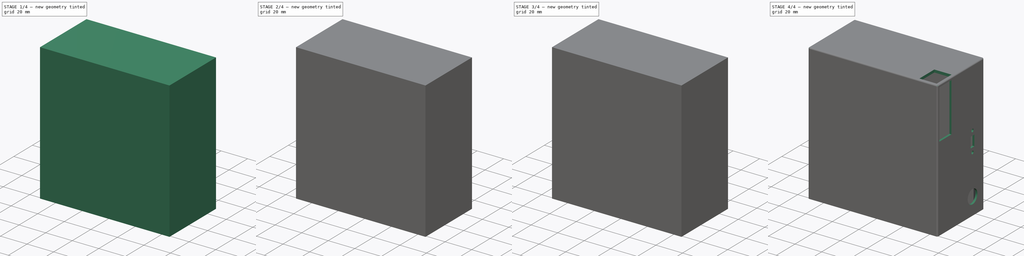
[diagram: build sequence overview — one tinted view per stage of 4, left to right]
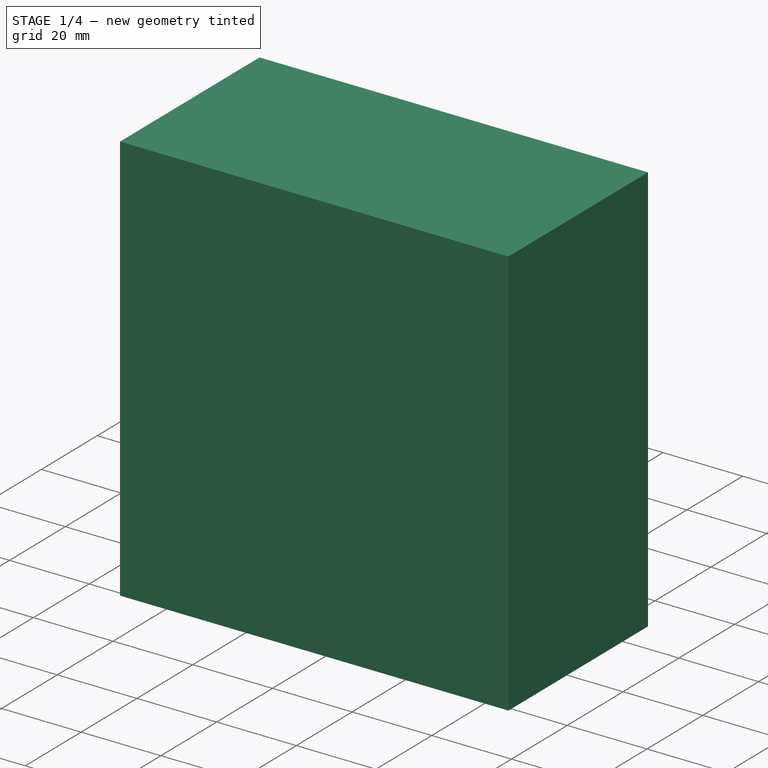
[diagram: stage 1 of 4 — iso view after this stage's code; geometry added in this stage tinted green]
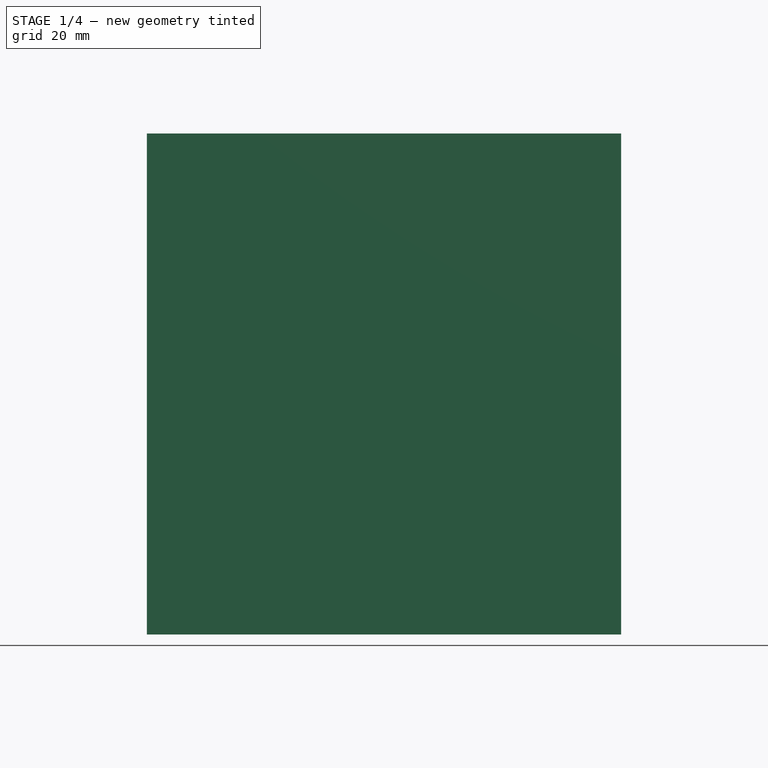
[diagram: stage 1 of 4 — front view after this stage's code; geometry added in this stage tinted green]
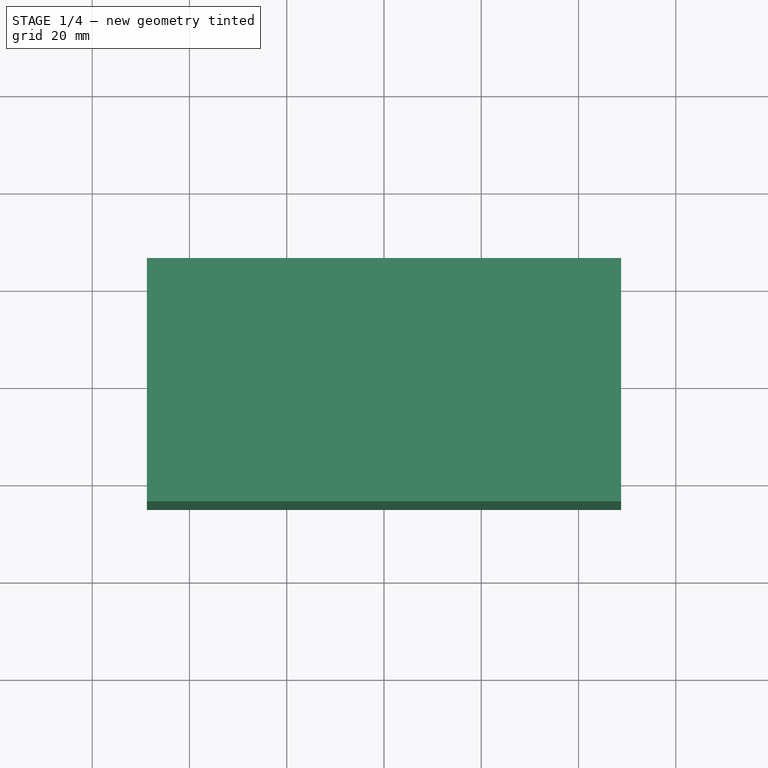
[diagram: stage 1 of 4 — top view after this stage's code; geometry added in this stage tinted green]
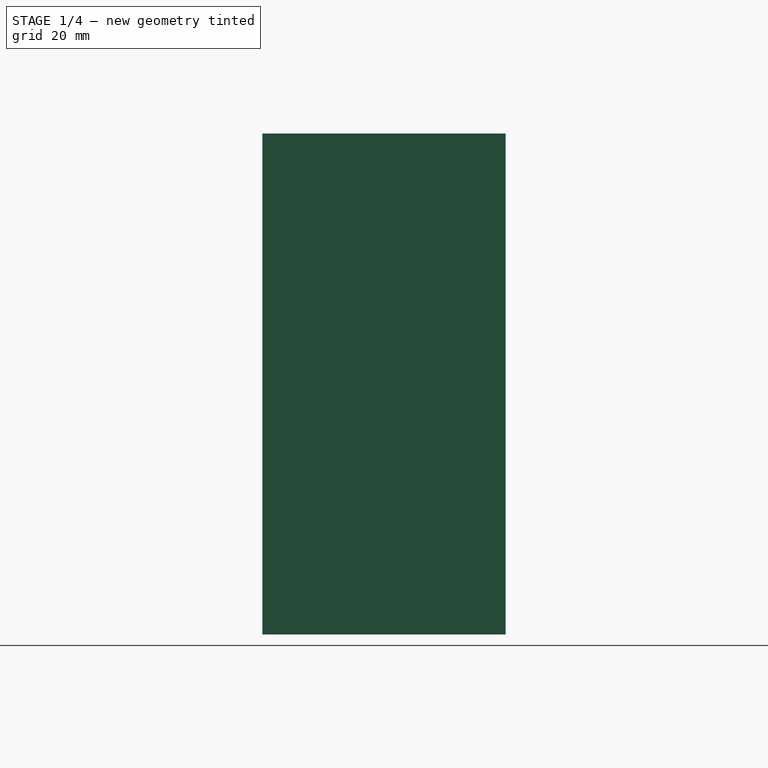
[diagram: stage 1 of 4 — right view after this stage's code; geometry added in this stage tinted green]
FCSTD DOCUMENT  (FreeCAD 0.18R16146 (Git))
Label: remote_box
License: All rights reserved
LicenseURL: http://en.wikipedia.org/wiki/All_rights_reserved
objects: Sketcher::SketchObject×10, PartDesign::Pocket×8, PartDesign::Pad×2, PartDesign::Plane×1, PartDesign::Fillet×1, PartDesign::Body×1
note: 33 computed .brp shape members not serialized (recipe doc carries the construction recipe); baked Part::Feature solids carry a one-line shape summary decoded from their .brp

FEATURE [Sketcher::SketchObject] Sketch
  MapMode = 5
  Support = -> [XY_Plane]
  sketch-geometry (4):
    g0: LineSegment StartX=-48.75 StartY=25 StartZ=0 EndX=48.75 EndY=25 EndZ=0
    g1: LineSegment StartX=48.75 StartY=25 StartZ=0 EndX=48.75 EndY=-25 EndZ=0
    g2: LineSegment StartX=48.75 StartY=-25 StartZ=0 EndX=-48.75 EndY=-25 EndZ=0
    g3: LineSegment StartX=-48.75 StartY=-25 StartZ=0 EndX=-48.75 EndY=25 EndZ=0
  constraints (10):
    c: Coincident(g0,g1)
    c: Coincident(g1,g2)
    c: Coincident(g2,g3)
    c: Coincident(g3,g0)
    c: Horizontal(g2)
    c: Vertical(g1)
    c: Symmetric(g0,g0,g-2)
    c: Symmetric(g2,g0,g-1)
    c: DistanceX(g0,g0) = 97.5
    c: DistanceY(g3,g3) = 50
FEATURE [PartDesign::Pad] Pad
  Length = 103
  Length2 = 100
  Profile = -> Sketch
  Type = 0
FEATURE [Sketcher::SketchObject] Sketch001
  MapMode = 5
  Placement = pos=(0,0,0) rot=(1,0,0;3.14159rad)
  Support = -> [Pad]
  sketch-geometry (25):
    g0: LineSegment StartX=-42.3003 StartY=23 StartZ=0 EndX=-47.25 EndY=18.0503 EndZ=0
    g1: LineSegment StartX=-47.25 StartY=18.0503 StartZ=0 EndX=-47.25 EndY=4.1 EndZ=0
    g2: LineSegment StartX=-47.25 StartY=4.1 StartZ=0 EndX=-42.25 EndY=4.1 EndZ=0
    g3: LineSegment StartX=-42.25 StartY=4.1 StartZ=0 EndX=-42.25 EndY=2.2 EndZ=0
    g4: LineSegment StartX=-42.25 StartY=2.2 StartZ=0 EndX=-47.25 EndY=2.2 EndZ=0
    g5: LineSegment StartX=-47.25 StartY=2.2 StartZ=0 EndX=-47.25 EndY=0.3 EndZ=0
    g6: LineSegment StartX=-47.25 StartY=0.3 StartZ=0 EndX=-42.25 EndY=0.3 EndZ=0
    g7: LineSegment StartX=-42.25 StartY=0.3 StartZ=0 EndX=-42.25 EndY=-1.6 EndZ=0
    g8: LineSegment StartX=-42.25 StartY=-1.6 StartZ=0 EndX=-47.25 EndY=-1.6 EndZ=0
    g9: LineSegment StartX=-47.25 StartY=-1.6 StartZ=0 EndX=-47.25 EndY=-18.0503 EndZ=0
    g10: LineSegment StartX=-47.25 StartY=-18.0503 StartZ=0 EndX=-42.3003 EndY=-23 EndZ=0
    g11: LineSegment StartX=-42.3003 StartY=-23 StartZ=0 EndX=42.3003 EndY=-23 EndZ=0
    g12: LineSegment StartX=42.3003 StartY=-23 StartZ=0 EndX=47.25 EndY=-18.0503 EndZ=0
    g13: LineSegment StartX=47.25 StartY=-18.0503 StartZ=0 EndX=47.25 EndY=-1.6 EndZ=0
    g14: LineSegment StartX=47.25 StartY=-1.6 StartZ=0 EndX=42.25 EndY=-1.6 EndZ=0
    g15: LineSegment StartX=42.25 StartY=-1.6 StartZ=0 EndX=42.25 EndY=0.3 EndZ=0
    g16: LineSegment StartX=42.25 StartY=0.3 StartZ=0 EndX=47.25 EndY=0.3 EndZ=0
    g17: LineSegment StartX=47.25 StartY=0.3 StartZ=0 EndX=47.25 EndY=2.2 EndZ=0
    g18: LineSegment StartX=47.25 StartY=2.2 StartZ=0 EndX=42.25 EndY=2.2 EndZ=0
    g19: LineSegment StartX=42.25 StartY=2.2 StartZ=0 EndX=42.25 EndY=4.1 EndZ=0
    g20: LineSegment StartX=42.25 StartY=4.1 StartZ=0 EndX=47.25 EndY=4.1 EndZ=0
    g21: LineSegment StartX=47.25 StartY=4.1 StartZ=0 EndX=47.25 EndY=4.1 EndZ=0
    g22: LineSegment StartX=47.25 StartY=4.1 StartZ=0 EndX=19.25 EndY=4.1 EndZ=0
    g23: LineSegment StartX=19.25 StartY=4.1 StartZ=0 EndX=19.25 EndY=23 EndZ=0
    g24: LineSegment StartX=19.25 StartY=23 StartZ=0 EndX=-42.3003 EndY=23 EndZ=0
  constraints (71):
    c: Coincident(g0,g1)
    c: Vertical(g1)
    c: Coincident(g1,g2)
    c: Horizontal(g2)
    c: Coincident(g2,g3)
    c: Vertical(g3)
    c: Coincident(g3,g4)
    c: Horizontal(g4)
    c: Coincident(g4,g5)
    c: Vertical(g5)
    c: Coincident(g5,g6)
    c: Horizontal(g6)
    c: Coincident(g6,g7)
    c: Vertical(g7)
    c: Coincident(g7,g8)
    c: Horizontal(g8)
    c: Coincident(g8,g9)
    c: Coincident(g9,g10)
    c: Coincident(g10,g11)
    c: Coincident(g11,g12)
    c: Coincident(g12,g13)
    c: Vertical(g13)
    c: Coincident(g13,g14)
    c: Horizontal(g14)
    c: Coincident(g14,g15)
    c: Vertical(g15)
    c: Coincident(g15,g16)
    c: Horizontal(g16)
    c: Coincident(g16,g17)
    c: Vertical(g17)
    c: Coincident(g17,g18)
    c: Horizontal(g18)
    c: Coincident(g18,g19)
    c: Vertical(g19)
    c: Coincident(g19,g20)
    c: Horizontal(g20)
    c: Coincident(g20,g21)
    c: Vertical(g21)
    c: Coincident(g21,g22)
    c: Horizontal(g22)
    c: Coincident(g22,g23)
    c: Vertical(g23)
    c: Coincident(g23,g24)
    c: Coincident(g24,g0)
    c: Horizontal(g24)
    c: Symmetric(g11,g10,g-2)
    c: Symmetric(g9,g12,g-2)
    c: Symmetric(g9,g0,g-1)
    c: Symmetric(g0,g10,g-1)
    c: DistanceX(g9,g12) = 94.5
    c: Angle(g11,g10) = 2.35619
    c: DistanceY(g10,g0) = 46
    c: Distance(g0) = 7
    c: Equal(g2,g4)
    c: Equal(g4,g6)
    c: Equal(g6,g8)
    c: Equal(g8,g20)
    c: Equal(g20,g18)
    c: Equal(g18,g16)
    c: Equal(g16,g14)
    c: Equal(g3,g5)
    c: Equal(g5,g7)
    c: Equal(g7,g19)
    c: Equal(g19,g17)
    c: Equal(g17,g15)
    c: DistanceY(g7,g7) = 1.9
    c: Equal(g9,g13)
    c: DistanceX(g2,g2) = 5
    c: DistanceY(g11,g16) = 23.3
    c: DistanceY(g23,g23) = 18.9
    c: DistanceX(g22,g22) = 28
FEATURE [PartDesign::Pocket] Pocket
  BaseFeature = -> Pad
  Length = 101
  Length2 = 100
  Profile = -> Sketch001
  Type = 0
FEATURE [Sketcher::SketchObject] Sketch002
  MapMode = 5
  Placement = pos=(0,0,0) rot=(1,0,0;3.14159rad)
  Support = -> [Pocket]
  sketch-geometry (4):
    g0: LineSegment StartX=20.95 StartY=23 StartZ=0 EndX=47.25 EndY=23 EndZ=0
    g1: LineSegment StartX=47.25 StartY=23 StartZ=0 EndX=47.25 EndY=5.7 EndZ=0
    g2: LineSegment StartX=47.25 StartY=5.7 StartZ=0 EndX=20.95 EndY=5.7 EndZ=0
    g3: LineSegment StartX=20.95 StartY=5.7 StartZ=0 EndX=20.95 EndY=23 EndZ=0
  constraints (12):
    c: Coincident(g0,g1)
    c: Coincident(g1,g2)
    c: Coincident(g2,g3)
    c: Coincident(g3,g0)
    c: Horizontal(g0)
    c: Horizontal(g2)
    c: Vertical(g1)
    c: Vertical(g3)
    c: DistanceY(g1,g1) = 17.3
    c: DistanceX(g0,g0) = 26.3
    c: DistanceX(g-1,g0) = 47.25
    c: DistanceY(g-1,g0) = 23
FEATURE [PartDesign::Pocket] Pocket001
  BaseFeature = -> Pocket
  Length = 101
  Length2 = 100
  Profile = -> Sketch002
  Type = 0
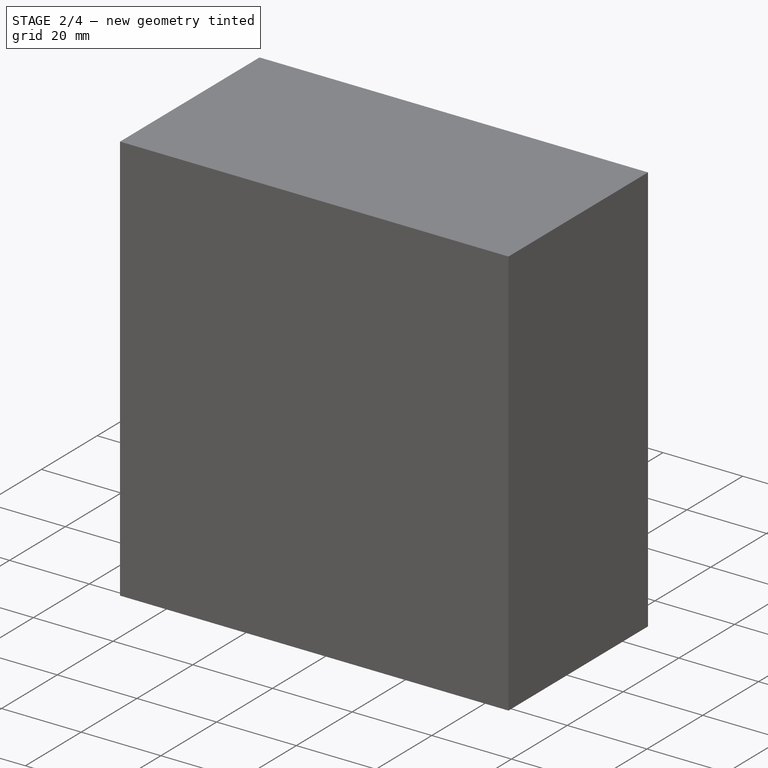
[diagram: stage 2 of 4 — iso view after this stage's code; geometry added in this stage tinted green]
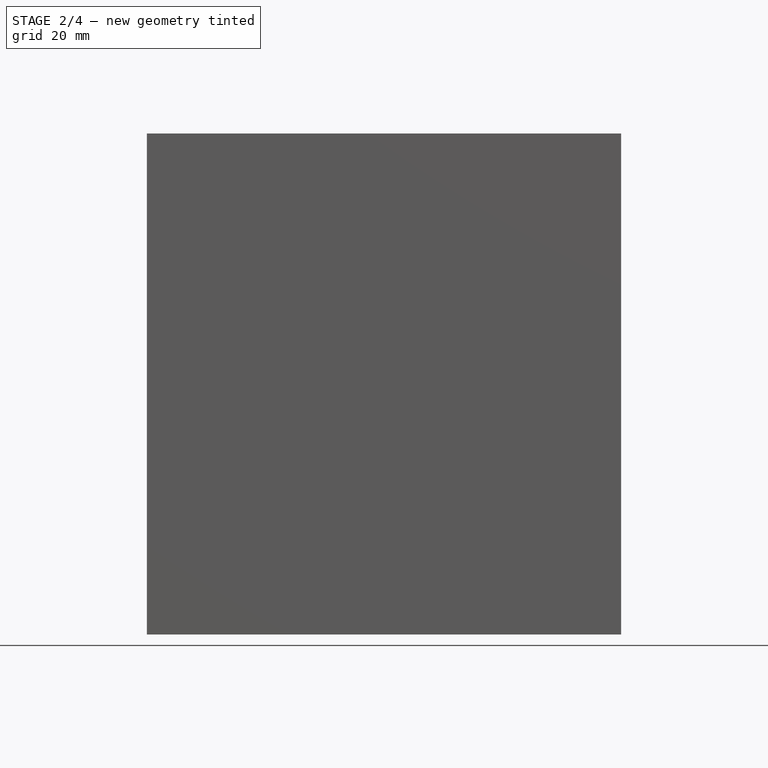
[diagram: stage 2 of 4 — front view after this stage's code; geometry added in this stage tinted green]
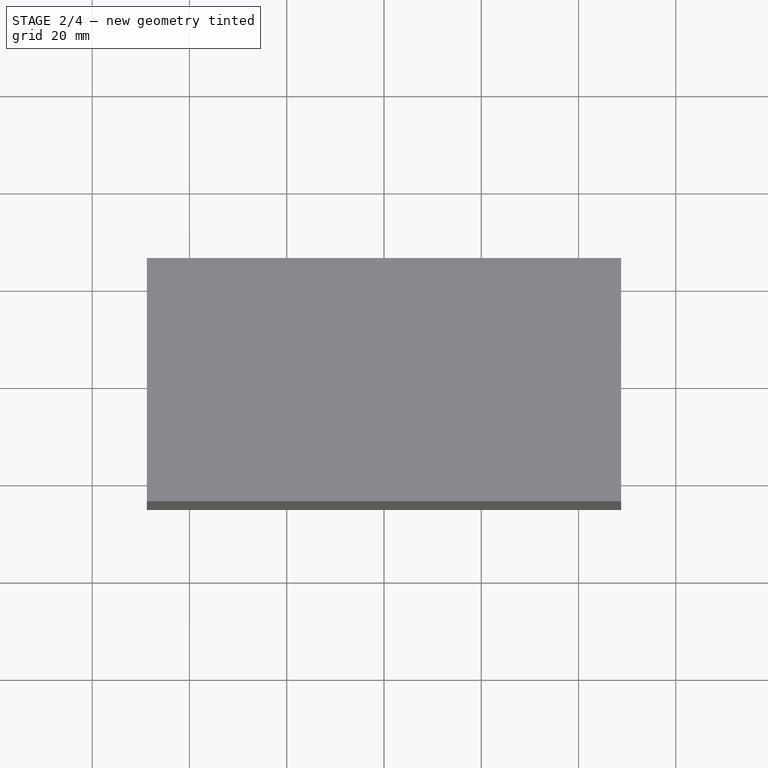
[diagram: stage 2 of 4 — top view after this stage's code; geometry added in this stage tinted green]
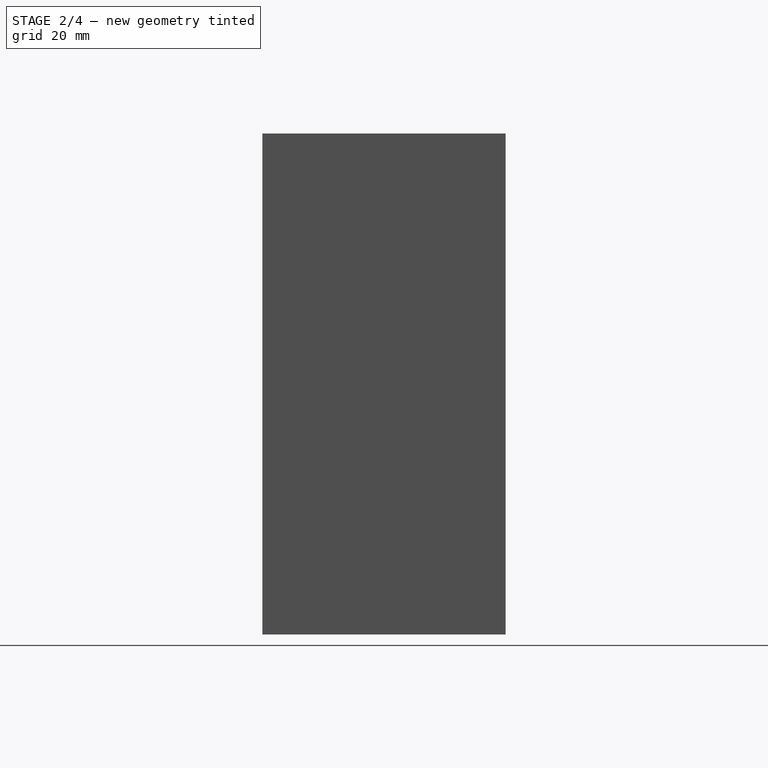
[diagram: stage 2 of 4 — right view after this stage's code; geometry added in this stage tinted green]
FEATURE [Sketcher::SketchObject] Sketch003
  MapMode = 5
  Placement = pos=(0,0,0) rot=(1,0,0;3.14159rad)
  Support = -> [Pocket001]
  sketch-geometry (4):
    g0: LineSegment StartX=19.05 StartY=4.1 StartZ=0 EndX=47.25 EndY=4.1 EndZ=0
    g1: LineSegment StartX=47.25 StartY=4.1 StartZ=0 EndX=47.25 EndY=23 EndZ=0
    g2: LineSegment StartX=47.25 StartY=23 StartZ=0 EndX=19.05 EndY=23 EndZ=0
    g3: LineSegment StartX=19.05 StartY=23 StartZ=0 EndX=19.05 EndY=4.1 EndZ=0
  constraints (12):
    c: Coincident(g0,g1)
    c: Coincident(g1,g2)
    c: Coincident(g2,g3)
    c: Coincident(g3,g0)
    c: Horizontal(g0)
    c: Horizontal(g2)
    c: Vertical(g1)
    c: Vertical(g3)
    c: DistanceY(g3,g3) = 18.9
    c: DistanceX(g0,g0) = 28.2
    c: DistanceX(g-1,g0) = 47.25
    c: DistanceY(g-1,g2) = 23
FEATURE [PartDesign::Pocket] Pocket002
  BaseFeature = -> Pocket001
  Length = 80
  Length2 = 100
  Profile = -> Sketch003
  Type = 0
FEATURE [PartDesign::Plane] DatumPlane
  Length = 111.464
  MapMode = 5
  Placement = pos=(0,0,0) rot=(1,0,0;3.14159rad)
  ResizeMode = 0
  Support = -> [Pocket002]
  Width = 63.9642
FEATURE [Sketcher::SketchObject] Sketch004
  MapMode = 5
  Placement = pos=(0,0,0) rot=(1,0,0;3.14159rad)
  Support = -> [DatumPlane]
  sketch-geometry (3):
    g0: LineSegment StartX=42.3003 StartY=23 StartZ=0 EndX=47.25 EndY=23 EndZ=0
    g1: LineSegment StartX=47.25 StartY=23 StartZ=0 EndX=47.25 EndY=18.0503 EndZ=0
    g2: LineSegment StartX=47.25 StartY=18.0503 StartZ=0 EndX=42.3003 EndY=23 EndZ=0
  constraints (9):
    c: Horizontal(g0)
    c: Coincident(g0,g1)
    c: Vertical(g1)
    c: Coincident(g1,g2)
    c: Coincident(g2,g0)
    c: Equal(g0,g1)
    c: Distance(g2) = 7
    c: DistanceY(g-1,g0) = 23
    c: DistanceX(g-1,g0) = 47.25
FEATURE [PartDesign::Pad] Pad001
  BaseFeature = -> Pocket002
  Length = 20
  Length2 = 100
  Profile = -> Sketch004
  Reversed = true
  Type = 0
FEATURE [Sketcher::SketchObject] Sketch005
  MapMode = 5
  Placement = pos=(0,0,0) rot=(1,0,0;3.14159rad)
  Support = -> [DatumPlane]
  sketch-geometry (8):
    g0: LineSegment [constr] StartX=-45.75 StartY=22 StartZ=0 EndX=45.75 EndY=22 EndZ=0
    g1: LineSegment [constr] StartX=45.75 StartY=22 StartZ=0 EndX=45.75 EndY=-22 EndZ=0
    g2: LineSegment [constr] StartX=45.75 StartY=-22 StartZ=0 EndX=-45.75 EndY=-22 EndZ=0
    g3: LineSegment [constr] StartX=-45.75 StartY=-22 StartZ=0 EndX=-45.75 EndY=22 EndZ=0
    g4: Circle CenterX=-45.75 CenterY=22 CenterZ=0 NormalX=0 NormalY=0 NormalZ=1 AngleXU=0 Radius=1.1
    g5: Circle CenterX=45.75 CenterY=22 CenterZ=0 NormalX=0 NormalY=0 NormalZ=1 AngleXU=0 Radius=1.1
    g6: Circle CenterX=45.75 CenterY=-22 CenterZ=0 NormalX=0 NormalY=0 NormalZ=1 AngleXU=0 Radius=1.1
    g7: Circle CenterX=-45.75 CenterY=-22 CenterZ=0 NormalX=0 NormalY=0 NormalZ=1 AngleXU=0 Radius=1.1
  constraints (18):
    c: Coincident(g0,g1)
    c: Coincident(g1,g2)
    c: Coincident(g2,g3)
    c: Coincident(g3,g0)
    c: Horizontal(g2)
    c: Vertical(g1)
    c: Symmetric(g0,g0,g-2)
    c: Symmetric(g2,g0,g-1)
    c: DistanceY(g1,g1) = 44
    c: DistanceX(g0,g0) = 91.5
    c: Coincident(g4,g0)
    c: Coincident(g5,g0)
    c: Coincident(g6,g1)
    c: Coincident(g7,g2)
    c: Equal(g5,g4)
    c: Equal(g4,g7)
    c: Equal(g7,g6)
    c: Diameter(g4) = 2.2
FEATURE [PartDesign::Pocket] Pocket003
  BaseFeature = -> Pad001
  Length = 20
  Length2 = 100
  Profile = -> Sketch005
  Type = 0
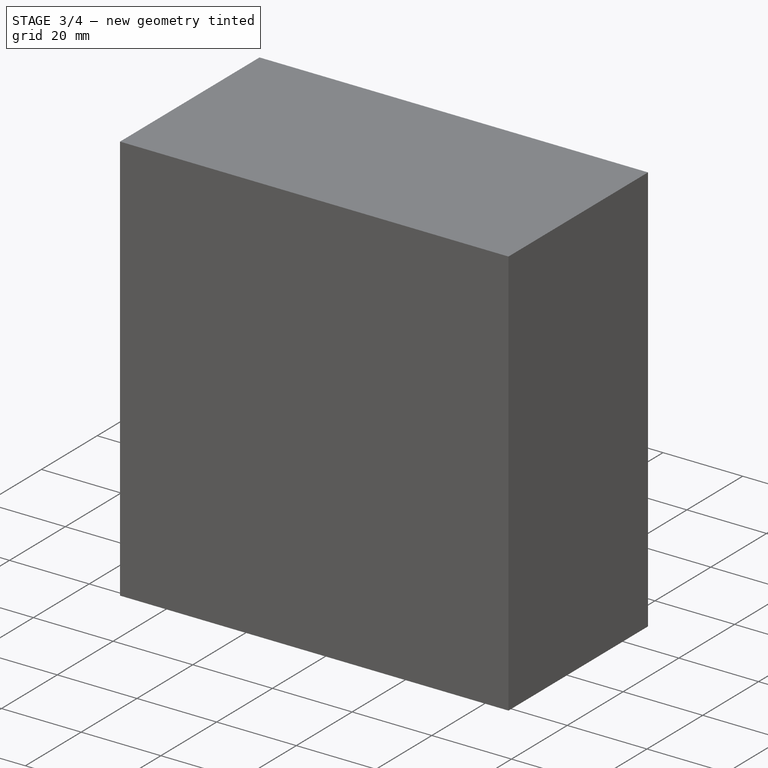
[diagram: stage 3 of 4 — iso view after this stage's code; geometry added in this stage tinted green]
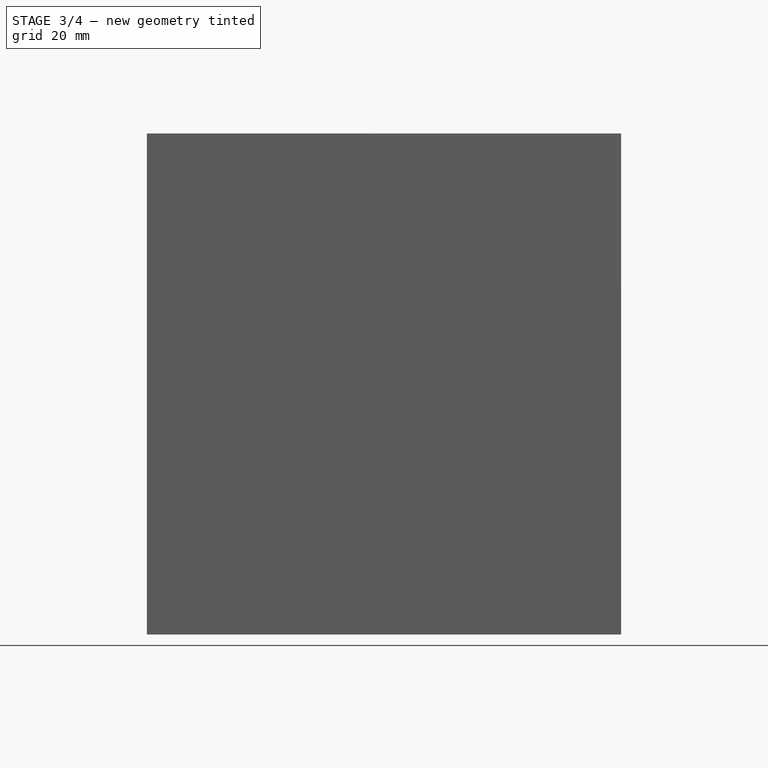
[diagram: stage 3 of 4 — front view after this stage's code; geometry added in this stage tinted green]
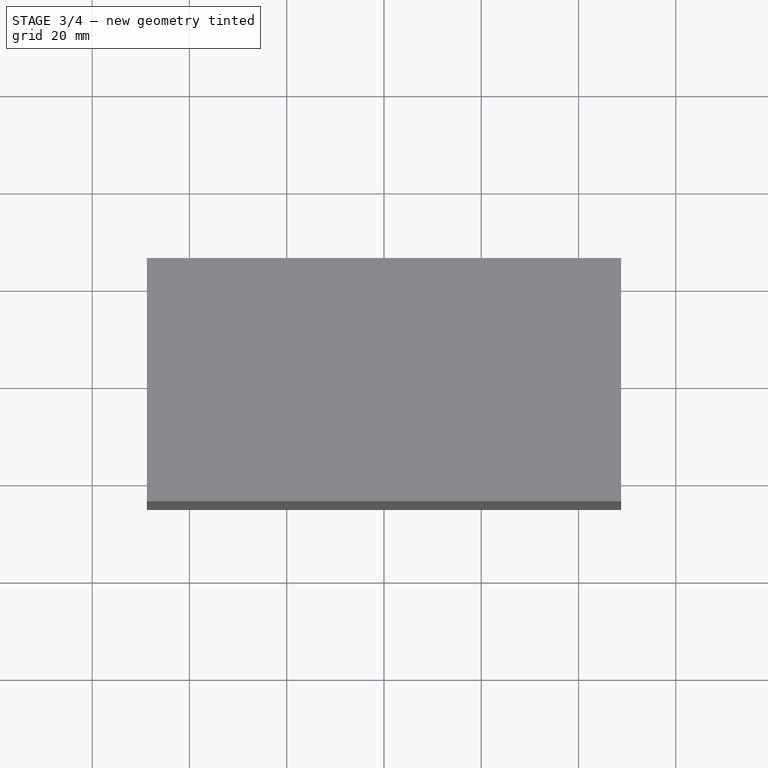
[diagram: stage 3 of 4 — top view after this stage's code; geometry added in this stage tinted green]
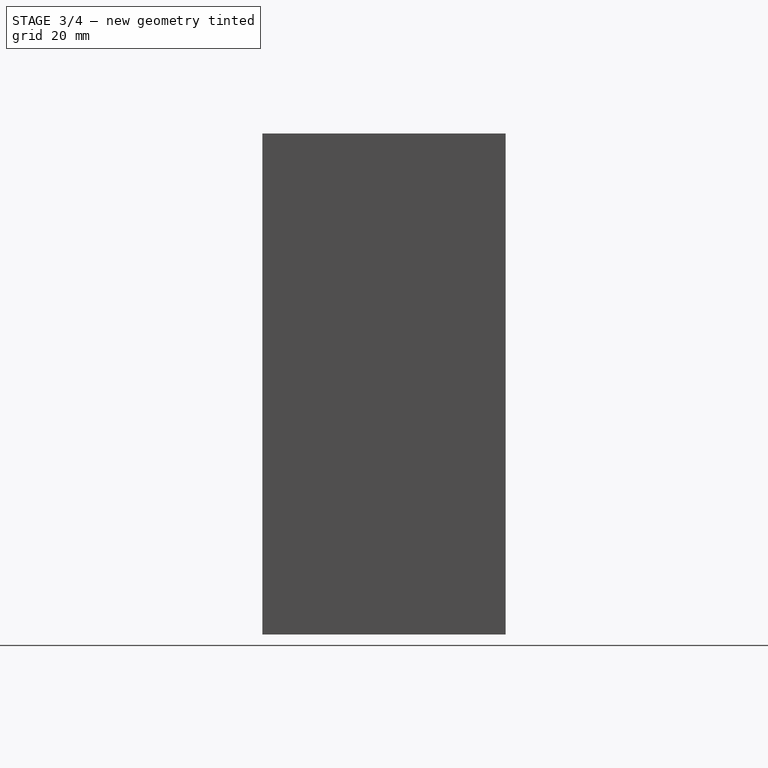
[diagram: stage 3 of 4 — right view after this stage's code; geometry added in this stage tinted green]
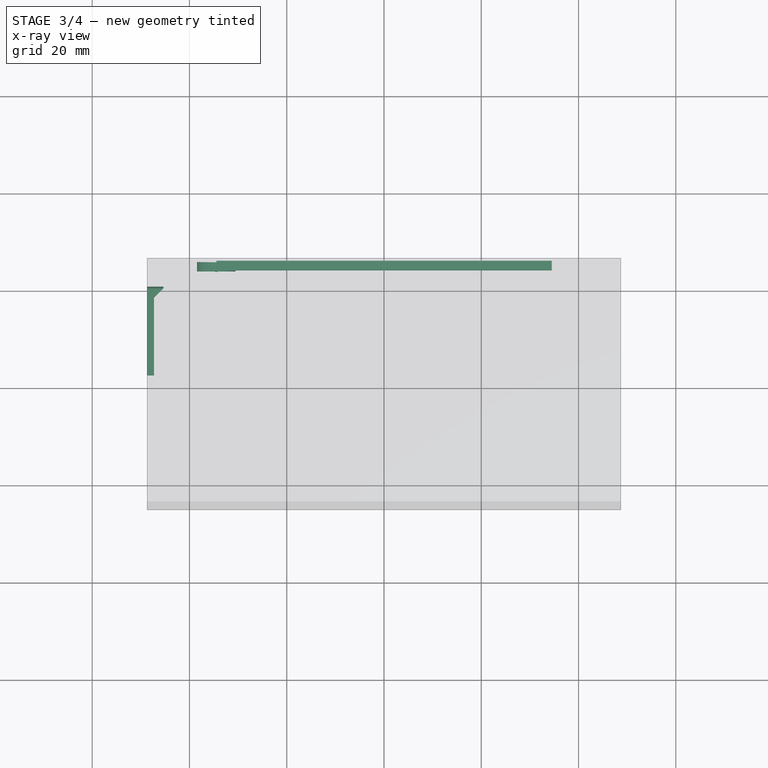
[diagram: stage 3 of 4 — x-ray composite at the top view; earlier geometry ghosted, this stage's added geometry solid]
FEATURE [Sketcher::SketchObject] Sketch006
  MapMode = 5
  Placement = pos=(0,25,0) rot=(0,0.707107,0.707107;3.14159rad)
  Support = -> [Pocket003]
  sketch-geometry (5):
    g0: LineSegment StartX=-34.5 StartY=92 StartZ=0 EndX=34.5 EndY=92 EndZ=0
    g1: LineSegment StartX=34.5 StartY=92 StartZ=0 EndX=34.5 EndY=71 EndZ=0
    g2: LineSegment StartX=34.5 StartY=71 StartZ=0 EndX=-34.5 EndY=71 EndZ=0
    g3: LineSegment StartX=-34.5 StartY=71 StartZ=0 EndX=-34.5 EndY=92 EndZ=0
    g4: Circle CenterX=34.5 CenterY=58 CenterZ=0 NormalX=0 NormalY=0 NormalZ=1 AngleXU=0 Radius=4
  constraints (14):
    c: Coincident(g0,g1)
    c: Coincident(g1,g2)
    c: Coincident(g2,g3)
    c: Coincident(g3,g0)
    c: Horizontal(g2)
    c: Vertical(g1)
    c: Vertical(g3)
    c: Symmetric(g0,g0,g-2)
    c: DistanceY(g3,g3) = 21
    c: DistanceX(g0,g0) = 69
    c: DistanceY(g-1,g0) = 92
    c: Diameter(g4) = 8
    c: DistanceY(g4,g1) = 13
    c: DistanceX(g-1,g4) = 34.5
FEATURE [PartDesign::Pocket] Pocket004
  BaseFeature = -> Pocket003
  Length = 5
  Length2 = 100
  Profile = -> Sketch006
  Type = 0
FEATURE [Sketcher::SketchObject] Sketch007
  MapMode = 5
  Placement = pos=(-48.75,0,0) rot=(0.57735,-0.57735,-0.57735;2.0944rad)
  Support = -> [Pocket004]
  sketch-geometry (5):
    g0: LineSegment [constr] StartX=0 StartY=43 StartZ=0 EndX=-30 EndY=43 EndZ=0
    g1: LineSegment StartX=-2 StartY=53 StartZ=0 EndX=-20 EndY=53 EndZ=0
    g2: LineSegment StartX=-20 StartY=53 StartZ=0 EndX=-20 EndY=33 EndZ=0
    g3: LineSegment StartX=-20 StartY=33 StartZ=0 EndX=-2 EndY=33 EndZ=0
    g4: LineSegment StartX=-2 StartY=33 StartZ=0 EndX=-2 EndY=53 EndZ=0
  constraints (15):
    c: PointOnObject(g0,g-2)
    c: Horizontal(g0)
    c: DistanceY(g-1,g0) = 43
    c: Coincident(g1,g2)
    c: Coincident(g2,g3)
    c: Coincident(g3,g4)
    c: Coincident(g4,g1)
    c: Horizontal(g1)
    c: Horizontal(g3)
    c: Vertical(g2)
    c: Symmetric(g1,g3,g0)
    c: DistanceX(g1,g1) = 18
    c: DistanceY(g4,g4) = 20
    c: DistanceX(g0,g0) = 30
    c: DistanceX(g3,g-1) = 2
FEATURE [PartDesign::Pocket] Pocket005
  BaseFeature = -> Pocket004
  Length = 5
  Length2 = 100
  Profile = -> Sketch007
  Type = 0
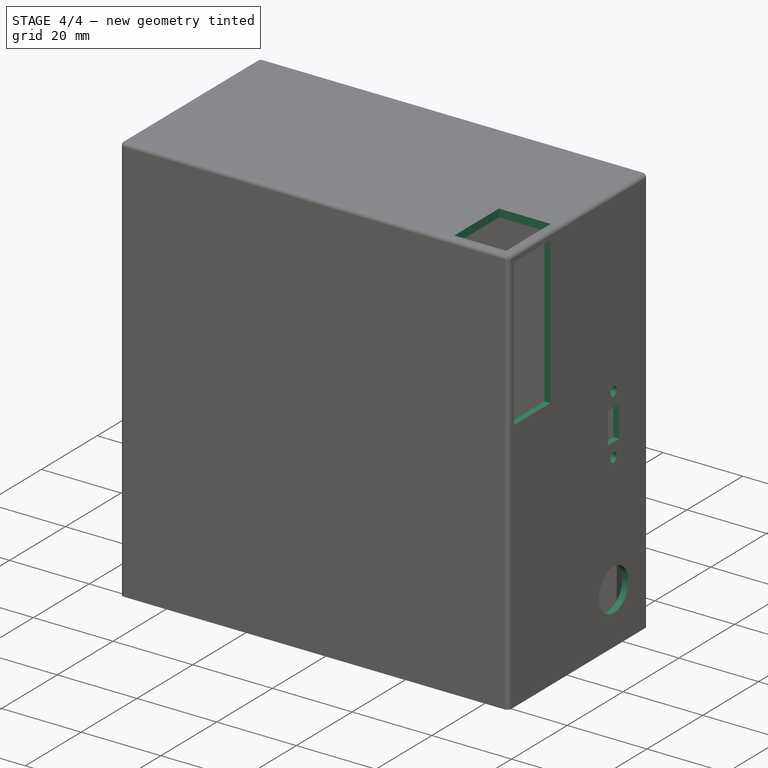
[diagram: stage 4 of 4 — iso view after this stage's code; geometry added in this stage tinted green]
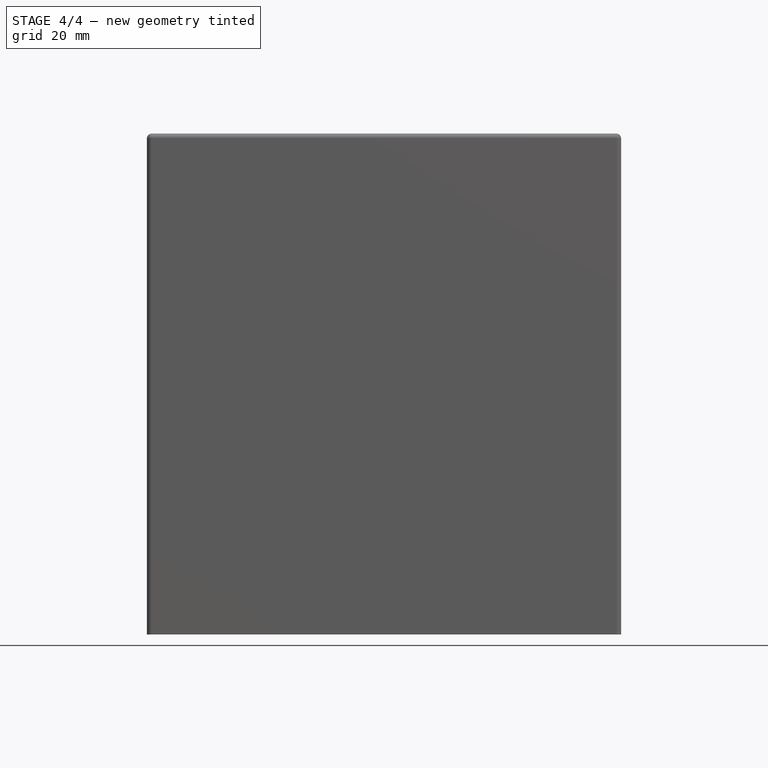
[diagram: stage 4 of 4 — front view after this stage's code; geometry added in this stage tinted green]
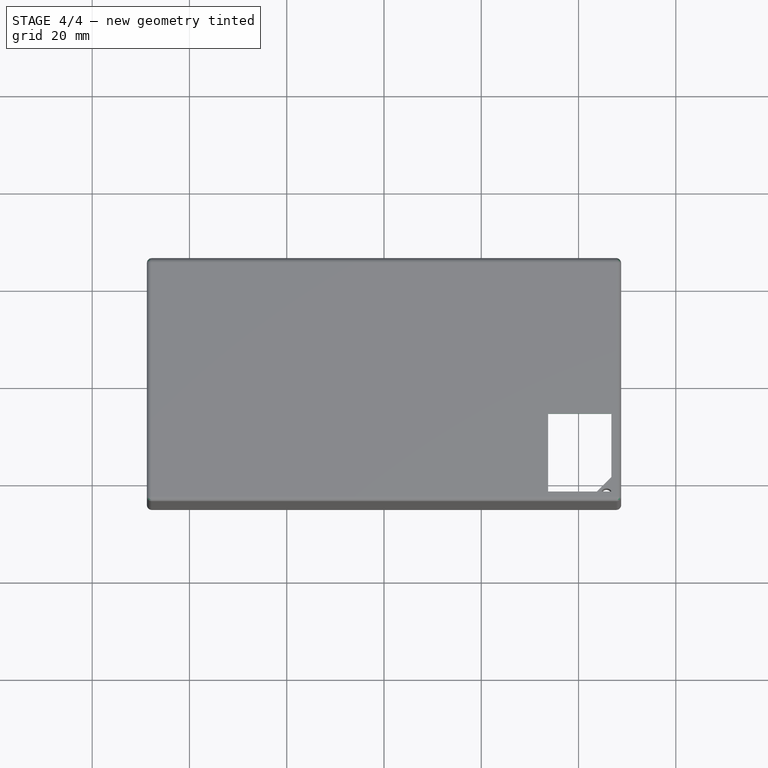
[diagram: stage 4 of 4 — top view after this stage's code; geometry added in this stage tinted green]
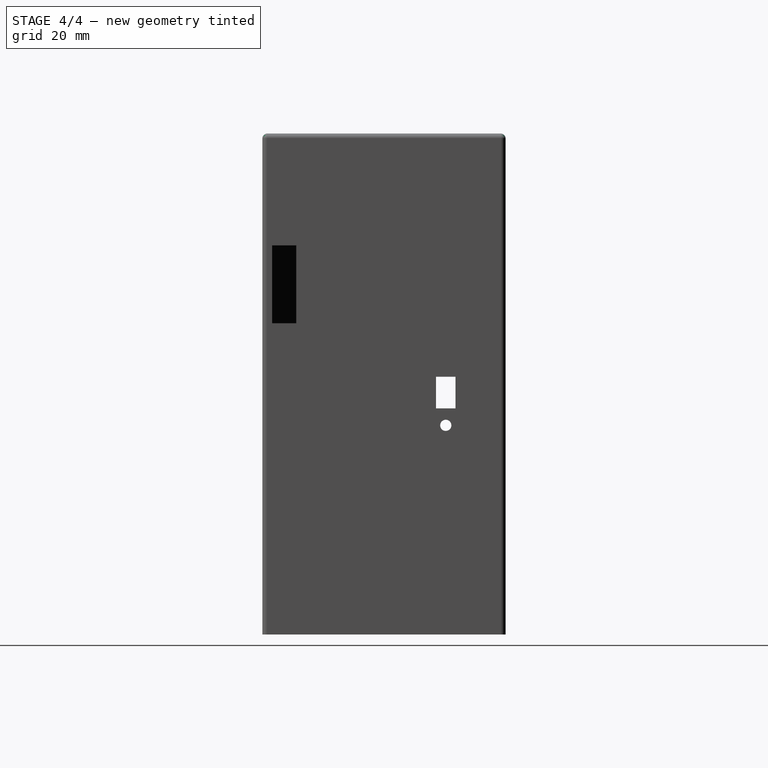
[diagram: stage 4 of 4 — right view after this stage's code; geometry added in this stage tinted green]
FEATURE [Sketcher::SketchObject] Sketch008
  MapMode = 5
  Placement = pos=(48.75,0,0) rot=(0.57735,0.57735,0.57735;2.0944rad)
  Support = -> [Pocket005]
  sketch-geometry (12):
    g0: LineSegment [constr] StartX=12.7 StartY=0 StartZ=0 EndX=12.7 EndY=103 EndZ=0
    g1: Circle CenterX=12.7 CenterY=58 CenterZ=0 NormalX=0 NormalY=0 NormalZ=1 AngleXU=0 Radius=1.15
    g2: LineSegment StartX=10.7 StartY=54.5 StartZ=0 EndX=14.7 EndY=54.5 EndZ=0
    g3: LineSegment StartX=14.7 StartY=54.5 StartZ=0 EndX=14.7 EndY=46.5 EndZ=0
    g4: LineSegment StartX=14.7 StartY=46.5 StartZ=0 EndX=10.7 EndY=46.5 EndZ=0
    g5: LineSegment StartX=10.7 StartY=46.5 StartZ=0 EndX=10.7 EndY=54.5 EndZ=0
    g6: Circle CenterX=12.7 CenterY=43 CenterZ=0 NormalX=0 NormalY=0 NormalZ=1 AngleXU=0 Radius=1.15
    g7: Circle CenterX=12.7 CenterY=13 CenterZ=0 NormalX=0 NormalY=0 NormalZ=1 AngleXU=0 Radius=5.25
    g8: LineSegment StartX=-23 StartY=101 StartZ=0 EndX=-10 EndY=101 EndZ=0
    g9: LineSegment StartX=-10 StartY=101 StartZ=0 EndX=-10 EndY=64 EndZ=0
    g10: LineSegment StartX=-10 StartY=64 StartZ=0 EndX=-23 EndY=64 EndZ=0
    g11: LineSegment StartX=-23 StartY=64 StartZ=0 EndX=-23 EndY=101 EndZ=0
  constraints (36):
    c: PointOnObject(g0,g-1)
    c: Vertical(g0)
    c: DistanceY(g0,g0) = 103
    c: PointOnObject(g1,g0)
    c: Coincident(g2,g3)
    c: Coincident(g3,g4)
    c: Coincident(g4,g5)
    c: Coincident(g5,g2)
    c: Horizontal(g4)
    c: Vertical(g3)
    c: Vertical(g5)
    c: Symmetric(g2,g2,g0)
    c: PointOnObject(g6,g0)
    c: Equal(g1,g6)
    c: Diameter(g1) = 2.3
    c: DistanceY(g3,g3) = 8
    c: DistanceX(g4,g4) = 4
    c: DistanceY(g6,g1) = 15
    c: DistanceY(g1,g0) = 45
    c: DistanceY(g2,g1) = 3.5
    c: DistanceX(g-1,g0) = 12.7
    c: PointOnObject(g7,g0)
    c: Diameter(g7) = 10.5
    c: DistanceY(g7,g0) = 90
    c: Coincident(g8,g9)
    c: Coincident(g9,g10)
    c: Coincident(g10,g11)
    c: Coincident(g11,g8)
    c: Horizontal(g8)
    c: Horizontal(g10)
    c: Vertical(g9)
    c: Vertical(g11)
    c: DistanceY(g8,g0) = 2
    c: DistanceY(g9,g9) = 37
    c: DistanceX(g8,g8) = 13
    c: DistanceX(g8,g-1) = 23
FEATURE [PartDesign::Pocket] Pocket006
  BaseFeature = -> Pocket005
  Length = 5
  Length2 = 100
  Profile = -> Sketch008
  Type = 0
FEATURE [Sketcher::SketchObject] Sketch009
  MapMode = 5
  Placement = pos=(0,0,103) rot=(0,0,1;0rad)
  Support = -> [Pocket006]
  sketch-geometry (4):
    g0: LineSegment StartX=33.75 StartY=-7 StartZ=0 EndX=46.75 EndY=-7 EndZ=0
    g1: LineSegment StartX=46.75 StartY=-7 StartZ=0 EndX=46.75 EndY=-23 EndZ=0
    g2: LineSegment StartX=46.75 StartY=-23 StartZ=0 EndX=33.75 EndY=-23 EndZ=0
    g3: LineSegment StartX=33.75 StartY=-23 StartZ=0 EndX=33.75 EndY=-7 EndZ=0
  constraints (12):
    c: Coincident(g0,g1)
    c: Coincident(g1,g2)
    c: Coincident(g2,g3)
    c: Coincident(g3,g0)
    c: Horizontal(g0)
    c: Horizontal(g2)
    c: Vertical(g1)
    c: Vertical(g3)
    c: DistanceY(g1,g1) = 16
    c: DistanceX(g0,g0) = 13
    c: DistanceX(g-1,g1) = 46.75
    c: DistanceY(g1,g-1) = 23
FEATURE [PartDesign::Pocket] Pocket007
  BaseFeature = -> Pocket006
  Length = 5
  Length2 = 100
  Profile = -> Sketch009
  Type = 0
FEATURE [PartDesign::Fillet] Fillet
  Base = -> Pocket007 [Edge54,Edge53,Edge3,Edge59,Edge4,Edge10,Edge12,Edge1]
  BaseFeature = -> Pocket007
  Radius = 1
FEATURE [PartDesign::Body] Body
  Group = -> [Sketch,Pad,Sketch001,Pocket,Sketch002,Pocket001,Sketch003,Pocket002,DatumPlane,Sketch004,Pad001,Sketch005,Pocket003,Sketch006,Pocket004,Sketch007,Pocket005,Sketch008,Pocket006,Sketch009,Pocket007,Fillet]
  Origin = -> Origin
  Tip = -> Fillet
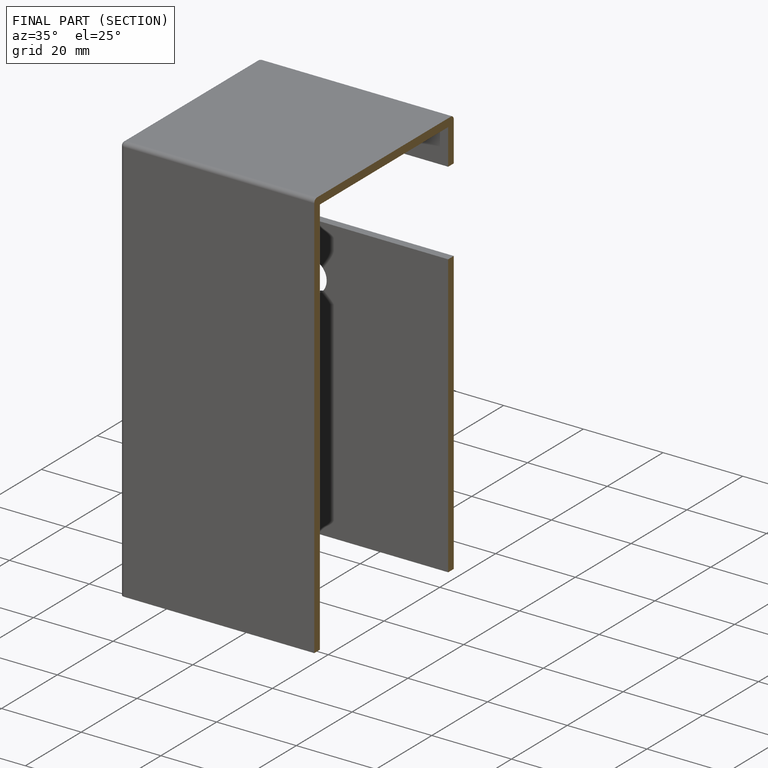
[diagram: finished part — half-section view (interior)]
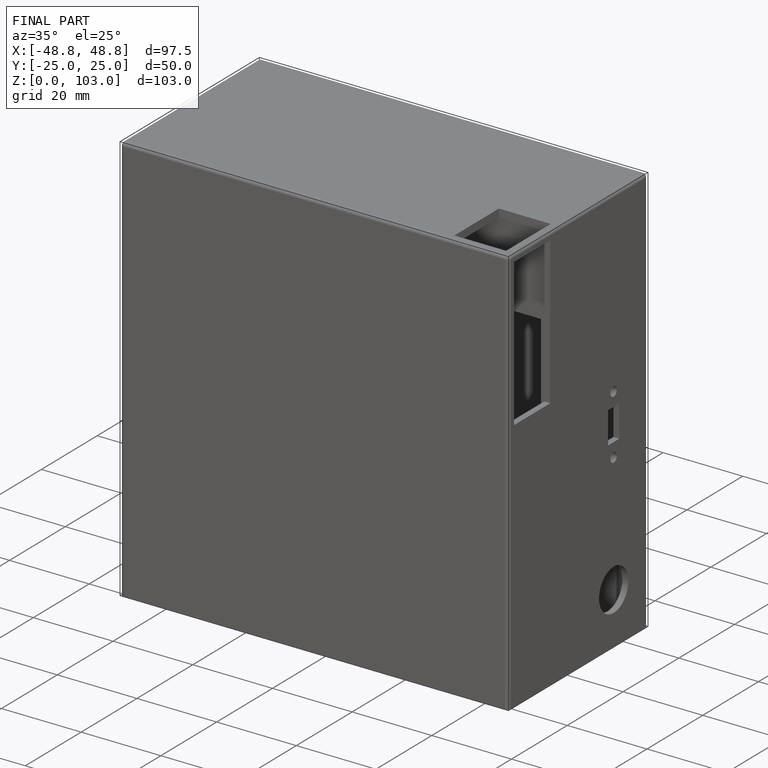
[diagram: finished part — iso view with bounding-box wireframe]
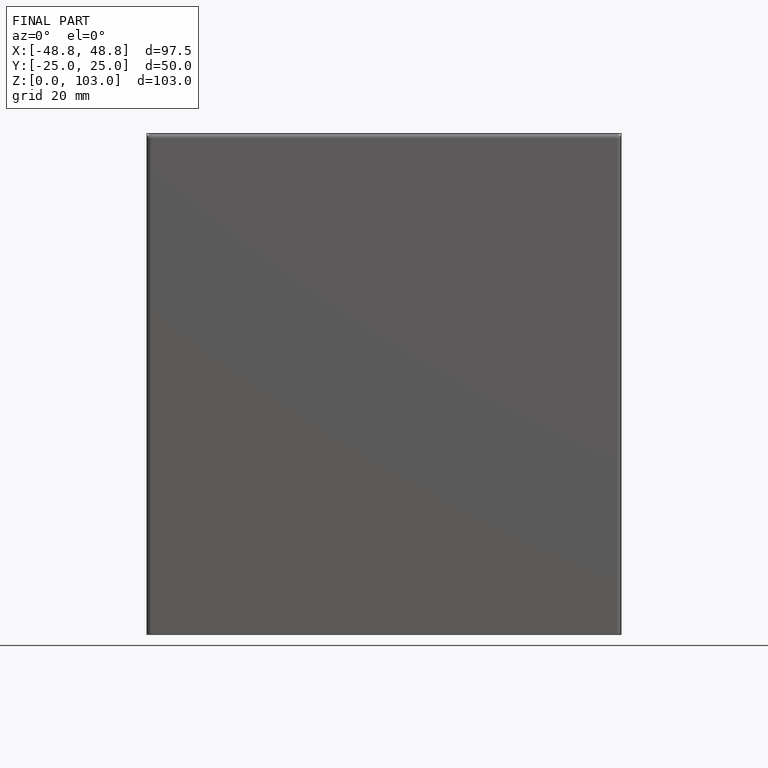
[diagram: finished part — front view with bounding-box wireframe]
